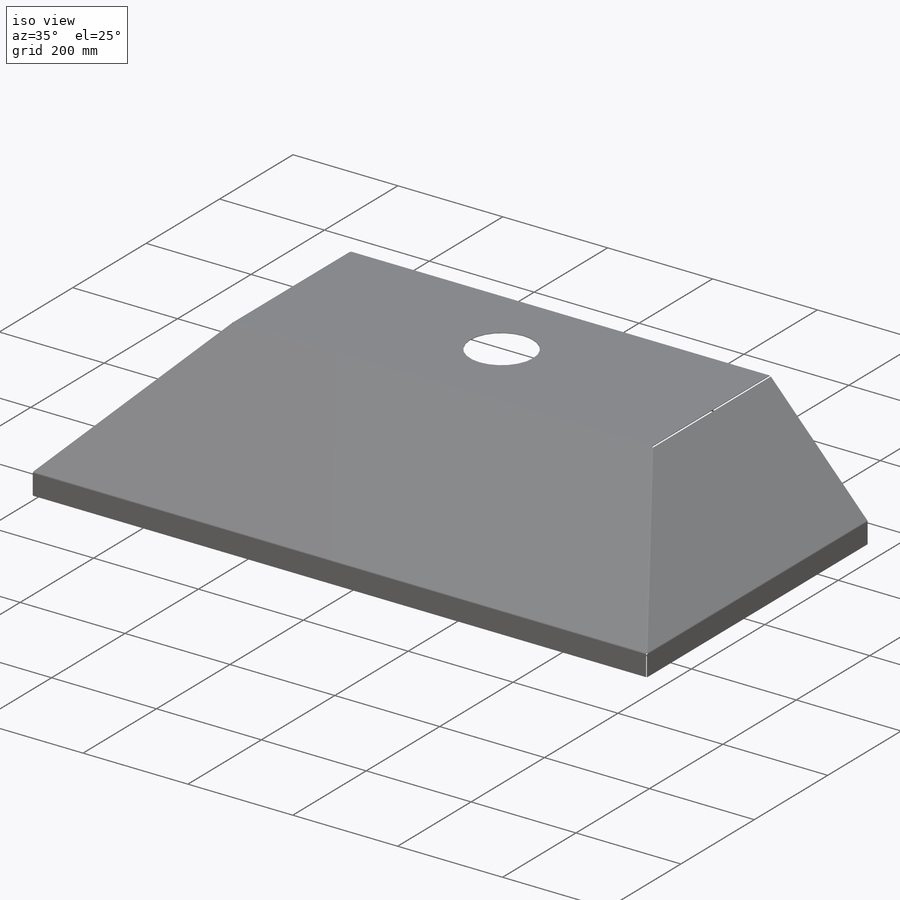
[diagram: iso view]
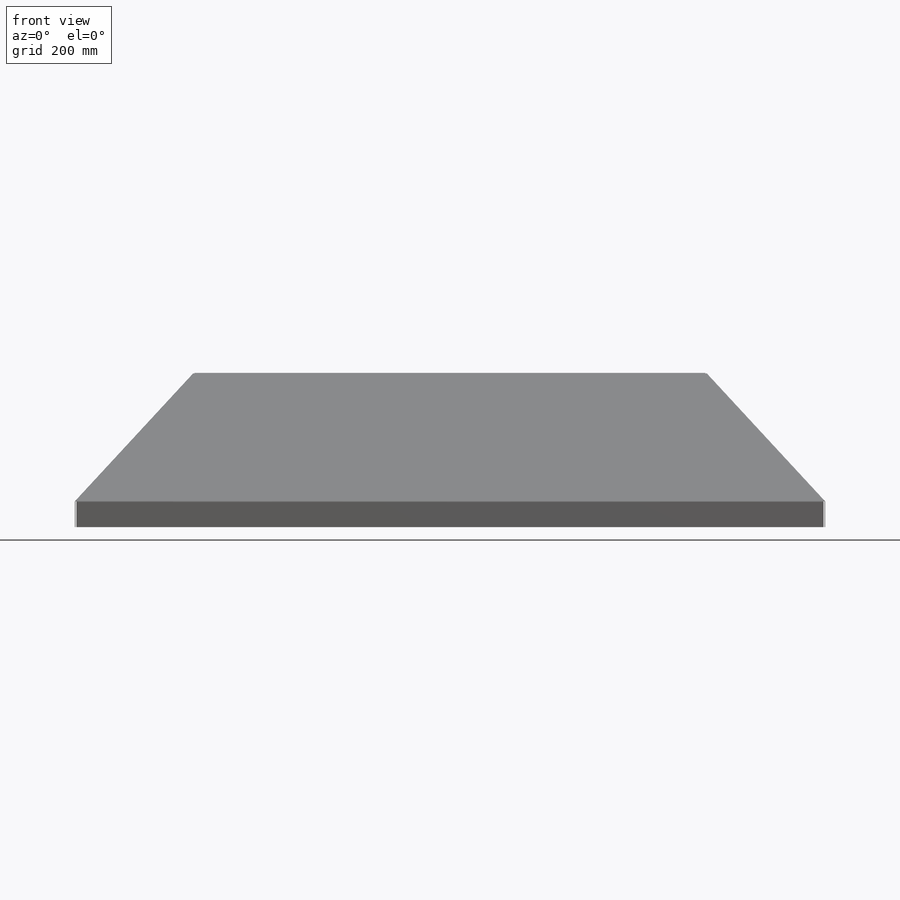
[diagram: front view]
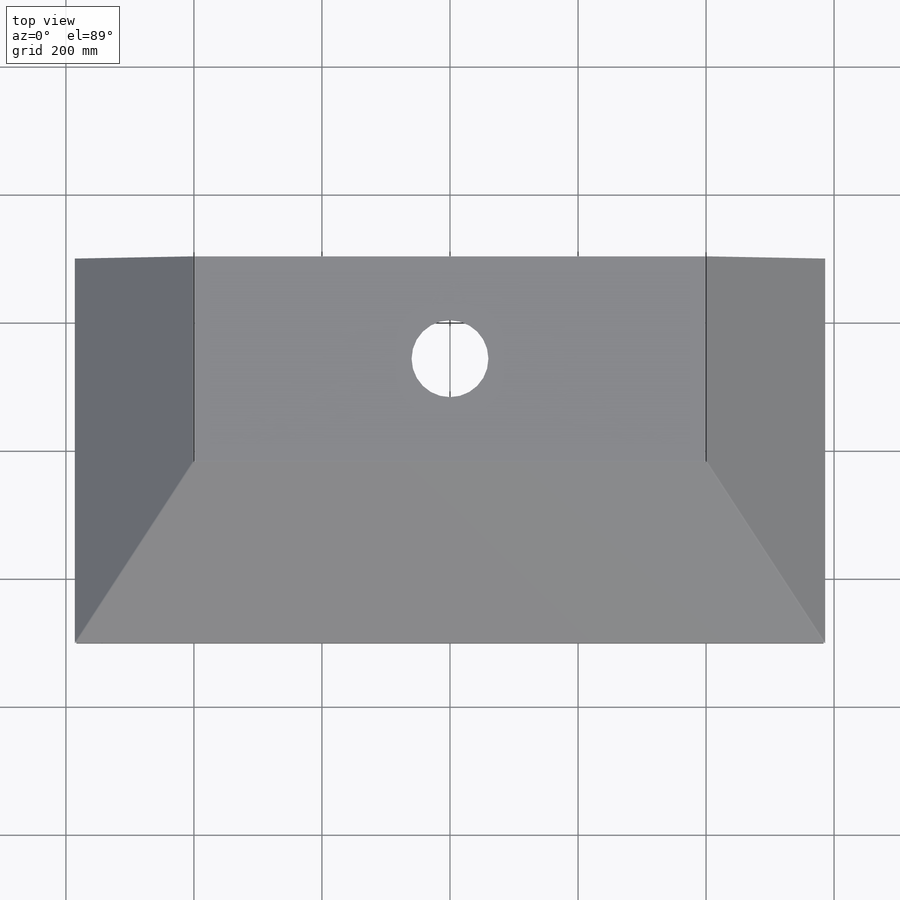
[diagram: top view]
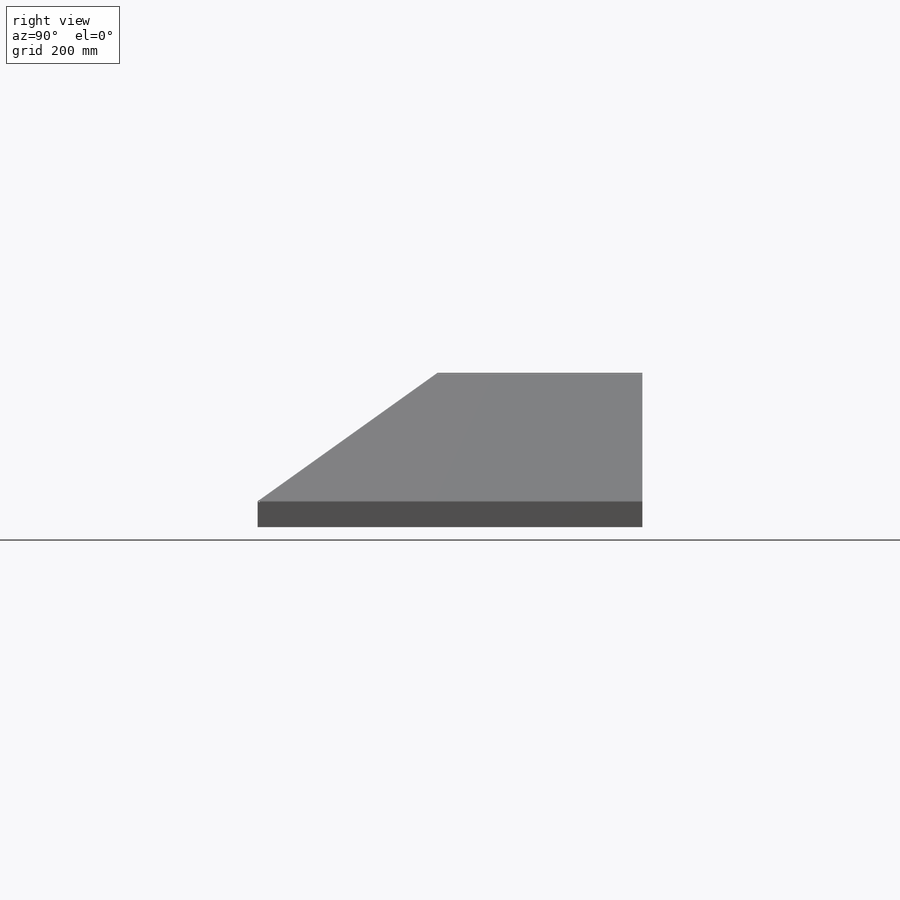
[diagram: right view]
SOLIDWORKS PART (.sldprt)
format: sldprt  version: not decoded by parser v0  size: 481,792 bytes
history: native  units: mm
features: sketch x12, plane x5, cut_extrude x4, extrude x2, material x1, sheet_metal_op x1 + 6 further entries (+8 scaffold rows collapsed; 1 parser-record rows omitted)
feature tree (40):
  scaffold x8  (default folders/planes/origin — collapsed)
  material  "1.4301 (X5CrNi18-10)"
  plane  "Ebene vorne"
  plane  "Ebene oben"
  plane  "Ebene rechts"
  sketch  "Skizze1"  dims[D1=1170.0mm D2=600.0mm]
  extrude  "Aufsatz-Linear austragen1"  Depth=40mm
  plane  "Ebene1"  Offset=200mm
  sketch  "Skizze2"  dims[D1=800.0mm D2=320.0mm]
  sketch  "3D-Skizze1"
  sketch  "Skizze1<3>"
  sheet_metal_op  "Blech1"  Biegung-Winkel2=0 Biegung-Winkel4=0 Biegung-Winkel5=0 Biegung-Winkel6=0
  sketch  "Skizze5"  dims[D1=120.0mm D2=160.0mm D3=~161.076707mm]
  cut_extrude  "Schnitt-Linear austragen1"  [1 undecoded]
  plane  "Ebene2"
  sketch  "Skizze6"  dims[D1=0.0mm]
  cut_extrude  "Schnitt-Linear austragen4"  Depth=0.25mm
  sketch  "Skizze7"  dims[D1=0.0mm]
  cut_extrude  "Schnitt-Linear austragen5"  Depth=0.25mm
  sketch  "Skizze8"  dims[D1=0.0mm]
  cut_extrude  "Schnitt-Linear austragen6"  Depth=0.25mm
  sketch  "Skizze9"  dims[D1=0.0mm]
  extrude  "Aufsatz-Linear austragen4"  Depth=0.25mm
  sketch  "Skizze12"  dims[c1.Kantenbiegung1=0.0 c1.D1=1.9mm c1.D4=~54.462322deg c1.D5=7.0 c1.D8=0.5mm c1.D9=0.5mm c2.D1=1.9mm c2.D2=500.0mm c2.D3=0.0mm c2.D6=10.0mm c2.D7=~40.514618mm]
  "Abwicklung1"
  sketch  "Biegung-Linien1"
  sketch  "Rahmen1"
  "Abwickeln-<Biegung-Winkel2>1"
  "Abwickeln-<Biegung-Winkel4>1"
  "Abwickeln-<Biegung-Winkel5>1"
  "Abwickeln-<Biegung-Winkel6>1"
  "Abwickeln-<Kantenbiegung1>1"
  parser-record x1  (decoder bookkeeping rows leaked as tree rows — omitted from the tree; the rows remain in map.json)
decode coverage: 14 of 19 modeling features carry decoded parameters; 6 rows unclassified (native names shown)
note: ~ marks probable driven/reference dimensions
note: 1 parameter value undecoded
note: suppression state not decoded; provenance and decode notes live in map.json
